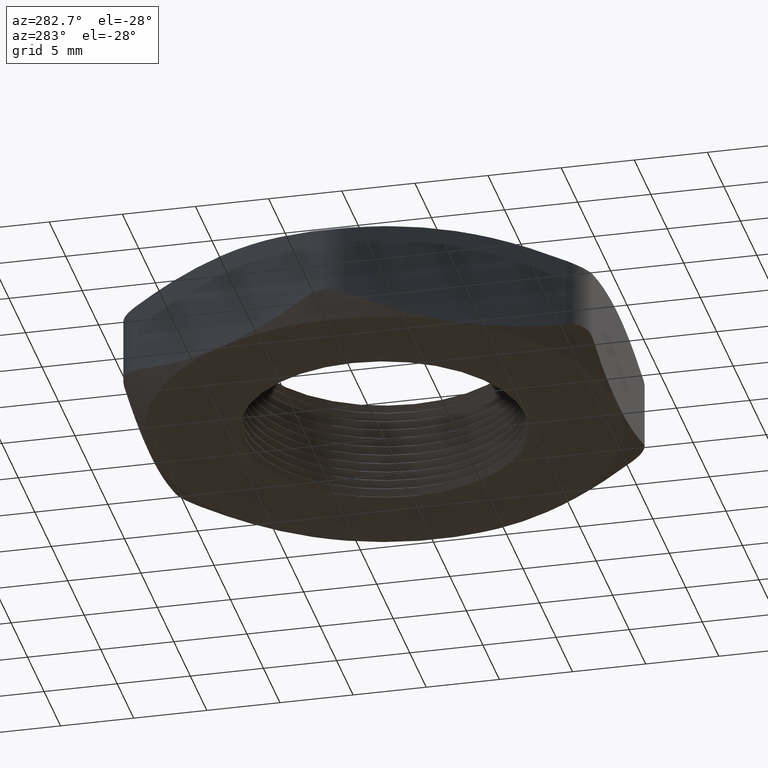
[diagram: clean part render]
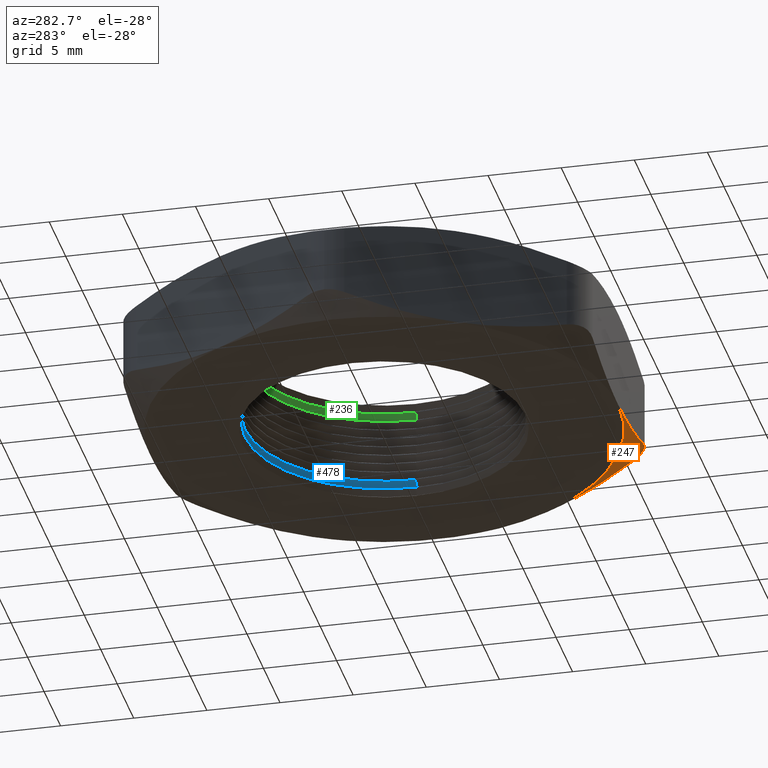
[diagram: same view with three faces highlighted in distinct colors, each labeled with its STEP entity id]
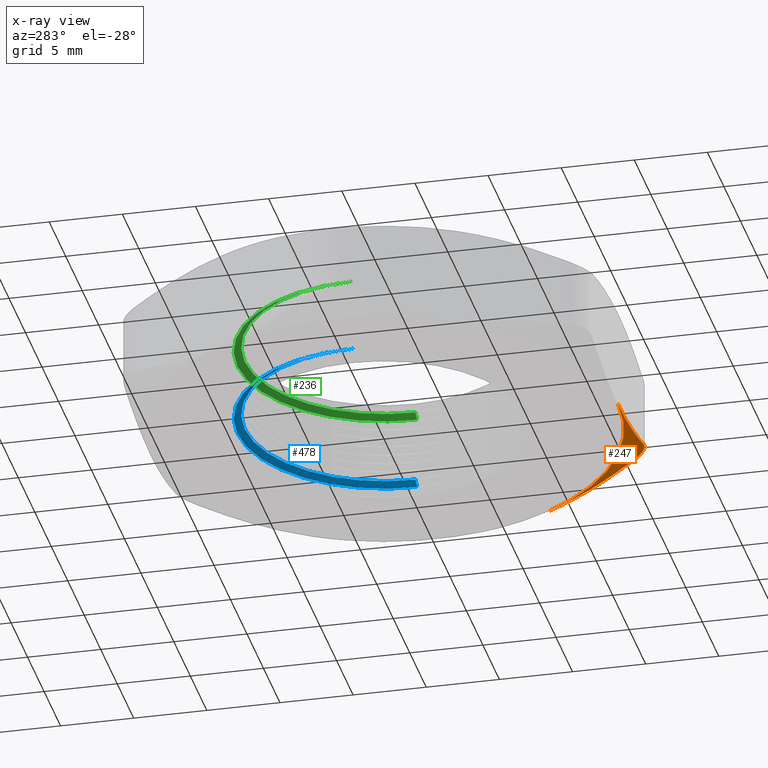
[diagram: x-ray of the same camera — body ghosted, the three highlighted faces saturated]
A machine part, auxiliary view with three faces highlighted in distinct colors.
The next image is the same camera in x-ray (body ghosted, the three faces saturated) — at least one of them is partly hidden behind the body in this view.
Their STEP definitions:

[orange] entity #247 — the highlighted conical surface has half-angle 60 deg.
#15 = VERTEX_POINT ( 'NONE', #886 ) ;
#22 = EDGE_CURVE ( 'NONE', #15, #1045, #911, .T. ) ;
#141 = EDGE_CURVE ( 'NONE', #1013, #142, #1237, .T. ) ;
#142 = VERTEX_POINT ( 'NONE', #1236 ) ;
#247 = ADVANCED_FACE ( 'NONE', ( #1369 ), #1365, .T. ) ;
#302 = ORIENTED_EDGE ( 'NONE', *, *, #141, .T. ) ;
#303 = ORIENTED_EDGE ( 'NONE', *, *, #22, .T. ) ;
#304 = ORIENTED_EDGE ( 'NONE', *, *, #1015, .F. ) ;
#306 = ORIENTED_EDGE ( 'NONE', *, *, #310, .T. ) ;
#310 = EDGE_CURVE ( 'NONE', #142, #15, #2187, .T. ) ;
#340 = EDGE_LOOP ( 'NONE', ( #302, #306, #303, #304 ) ) ;
#886 = CARTESIAN_POINT ( 'NONE',  ( 0.3059956426705017200, -0.6299999999999996700, 0.04063440198708866100 ) ) ;
#907 = CARTESIAN_POINT ( 'NONE',  ( 0.3059956426705017200, -0.6299999999999996700, 0.04063440198708866100 ) ) ;
#911 = B_SPLINE_CURVE_WITH_KNOTS ( 'NONE', 3,
 ( #907, #1085, #1084, #1083, #1082, #1081, #1080, #1079 ),
 .UNSPECIFIED., .F., .F.,
 ( 4, 2, 2, 4 ),
 ( 0.04672902150023194200, 0.05064689328706820100, 0.05260582918048633400, 0.05456476507390446700 ),
 .UNSPECIFIED. ) ;
#1013 = VERTEX_POINT ( 'NONE', #2105 ) ;
#1015 = EDGE_CURVE ( 'NONE', #1013, #1045, #2104, .T. ) ;
#1045 = VERTEX_POINT ( 'NONE', #2092 ) ;
#1079 = CARTESIAN_POINT ( 'NONE',  ( 1.182924880895401300E-016, -0.6300000000000001200, 0.0000000000000000000 ) ) ;
#1080 = CARTESIAN_POINT ( 'NONE',  ( 0.02579200222124228600, -0.6299999999999997800, -1.994195678968785800E-016 ) ) ;
#1081 = CARTESIAN_POINT ( 'NONE',  ( 0.05166957935136119000, -0.6299999999999996700, 0.0009179078308665548400 ) ) ;
#1082 = CARTESIAN_POINT ( 'NONE',  ( 0.1035954062706916500, -0.6299999999999997800, 0.004584420975691187200 ) ) ;
#1083 = CARTESIAN_POINT ( 'NONE',  ( 0.1293692025201566300, -0.6299999999999997800, 0.007313265423383262700 ) ) ;
#1084 = CARTESIAN_POINT ( 'NONE',  ( 0.2060195863822907600, -0.6299999999999996700, 0.01788070700900876500 ) ) ;
#1085 = CARTESIAN_POINT ( 'NONE',  ( 0.2563047715763589500, -0.6299999999999996700, 0.02810019209928715400 ) ) ;
#1096 = CARTESIAN_POINT ( 'NONE',  ( 0.3925981830489454500, -0.5799999999999997400, 0.04063440198708866100 ) ) ;
#1097 = CARTESIAN_POINT ( 'NONE',  ( 0.4176211247064825500, -0.5366589936943135800, 0.02801064249808456500 ) ) ;
#1098 = CARTESIAN_POINT ( 'NONE',  ( 0.4428433602086229200, -0.4929728003241393200, 0.01779319626366858100 ) ) ;
#1099 = CARTESIAN_POINT ( 'NONE',  ( 0.4810750435949703900, -0.4267535822400983500, 0.007276543638358973200 ) ) ;
#1100 = CARTESIAN_POINT ( 'NONE',  ( 0.4938853310808446500, -0.4045655134550000300, 0.004572635249509209500 ) ) ;
#1101 = CARTESIAN_POINT ( 'NONE',  ( 0.5196523308361767900, -0.3599357607201502700, 0.0009327802382047174800 ) ) ;
#1102 = CARTESIAN_POINT ( 'NONE',  ( 0.5326569008401135200, -0.3374111847427455600, -1.781270270771198400E-016 ) ) ;
#1103 = CARTESIAN_POINT ( 'NONE',  ( 0.5455960043841964200, -0.3150000000000000000, 0.0000000000000000000 ) ) ;
#1236 = CARTESIAN_POINT ( 'NONE',  ( 0.3925981830489454500, -0.5799999999999997400, 0.04063440198708866100 ) ) ;
#1237 = B_SPLINE_CURVE_WITH_KNOTS ( 'NONE', 3,
 ( #1103, #1102, #1101, #1100, #1099, #1098, #1097, #1096 ),
 .UNSPECIFIED., .F., .F.,
 ( 4, 2, 2, 4 ),
 ( 0.009348348844219096800, 0.01130023374885202700, 0.01325211865348495700, 0.01715588846275081800 ),
 .UNSPECIFIED. ) ;
#1360 = DIRECTION ( 'NONE',  ( -1.000000000000000000, 0.0000000000000000000, 0.0000000000000000000 ) ) ;
#1361 = DIRECTION ( 'NONE',  ( 0.0000000000000000000, 0.0000000000000000000, 1.000000000000000000 ) ) ;
#1362 = CARTESIAN_POINT ( 'NONE',  ( 0.0000000000000000000, 0.0000000000000000000, 0.0000000000000000000 ) ) ;
#1363 = AXIS2_PLACEMENT_3D ( 'NONE', #1362, #1361, #1360 ) ;
#1365 = CONICAL_SURFACE ( 'NONE', #1363, 0.6300000000000001200, 1.047197551196600100 ) ;
#1369 = FACE_OUTER_BOUND ( 'NONE', #340, .T. ) ;
#2092 = CARTESIAN_POINT ( 'NONE',  ( 1.182924880895401300E-016, -0.6300000000000001200, 0.0000000000000000000 ) ) ;
#2100 = DIRECTION ( 'NONE',  ( -1.000000000000000000, 0.0000000000000000000, 0.0000000000000000000 ) ) ;
#2101 = DIRECTION ( 'NONE',  ( -0.0000000000000000000, 0.0000000000000000000, -1.000000000000000000 ) ) ;
#2102 = CARTESIAN_POINT ( 'NONE',  ( 0.0000000000000000000, 0.0000000000000000000, 0.0000000000000000000 ) ) ;
#2103 = AXIS2_PLACEMENT_3D ( 'NONE', #2102, #2101, #2100 ) ;
#2104 = CIRCLE ( 'NONE', #2103, 0.6300000000000001200 ) ;
#2105 = CARTESIAN_POINT ( 'NONE',  ( 0.5455960043841964200, -0.3150000000000000000, 0.0000000000000000000 ) ) ;
#2162 = CARTESIAN_POINT ( 'NONE',  ( 0.3925981830489454500, -0.5799999999999997400, 0.04063440198708866100 ) ) ;
#2181 = CARTESIAN_POINT ( 'NONE',  ( 0.3636721594968538300, -0.6121620107411232000, 0.04733404162806195700 ) ) ;
#2182 = CARTESIAN_POINT ( 'NONE',  ( 0.3707106141912897600, -0.6067377047571307400, 0.04675043063081285600 ) ) ;
#2183 = CARTESIAN_POINT ( 'NONE',  ( 0.3830644947732887400, -0.5943202526883075700, 0.04446951372648417400 ) ) ;
#2184 = CARTESIAN_POINT ( 'NONE',  ( 0.3882874085536086000, -0.5874664804458952200, 0.04280913352685850000 ) ) ;
#2187 = B_SPLINE_CURVE_WITH_KNOTS ( 'NONE', 3,
 ( #2162, #2184, #2183, #2182, #2181, #2197, #2196, #2195, #2194, #2193 ),
 .UNSPECIFIED., .F., .F.,
 ( 4, 2, 2, 2, 4 ),
 ( 2.491306920542243800E-018, 0.0006684479132045115400, 0.001336895826409020500, 0.002005343739613529900, 0.002673791652818038800 ),
 .UNSPECIFIED. ) ;
#2193 = CARTESIAN_POINT ( 'NONE',  ( 0.3059956426705017200, -0.6299999999999996700, 0.04063440198708866100 ) ) ;
#2194 = CARTESIAN_POINT ( 'NONE',  ( 0.3146195873315776300, -0.6300000000000001200, 0.04280973781965895900 ) ) ;
#2195 = CARTESIAN_POINT ( 'NONE',  ( 0.3233521482827375100, -0.6288661155341268600, 0.04450017217886037500 ) ) ;
#2196 = CARTESIAN_POINT ( 'NONE',  ( 0.3401720759722338100, -0.6243807633718182500, 0.04675539854059019400 ) ) ;
#2197 = CARTESIAN_POINT ( 'NONE',  ( 0.3484633796037652200, -0.6209597049358234200, 0.04734130525848826600 ) ) ;

[blue] entity #478 — the highlighted conical surface has half-angle 60 deg.
#366 = VERTEX_POINT ( 'NONE', #2258 ) ;
#369 = VERTEX_POINT ( 'NONE', #2252 ) ;
#389 = VERTEX_POINT ( 'NONE', #2315 ) ;
#391 = EDGE_CURVE ( 'NONE', #389, #369, #2314, .T. ) ;
#394 = EDGE_CURVE ( 'NONE', #570, #366, #2310, .T. ) ;
#425 = EDGE_CURVE ( 'NONE', #389, #570, #2401, .T. ) ;
#473 = EDGE_LOOP ( 'NONE', ( #559, #560, #561, #562 ) ) ;
#478 = ADVANCED_FACE ( 'NONE', ( #2599 ), #2596, .F. ) ;
#559 = ORIENTED_EDGE ( 'NONE', *, *, #391, .F. ) ;
#560 = ORIENTED_EDGE ( 'NONE', *, *, #425, .T. ) ;
#561 = ORIENTED_EDGE ( 'NONE', *, *, #394, .T. ) ;
#562 = ORIENTED_EDGE ( 'NONE', *, *, #563, .F. ) ;
#563 = EDGE_CURVE ( 'NONE', #369, #366, #2487, .T. ) ;
#570 = VERTEX_POINT ( 'NONE', #2503 ) ;
#2252 = CARTESIAN_POINT ( 'NONE',  ( 0.3950000000000000200, 4.837195097598389900E-017, 0.03345299461620775100 ) ) ;
#2258 = CARTESIAN_POINT ( 'NONE',  ( -0.3950000000000000200, 0.0000000000000000000, 0.03345299461620775100 ) ) ;
#2307 = DIRECTION ( 'NONE',  ( -0.8660254037844434800, 0.0000000000000000000, -0.4999999999999913400 ) ) ;
#2308 = VECTOR ( 'NONE', #2307, 39.37007874015748900 ) ;
#2309 = CARTESIAN_POINT ( 'NONE',  ( -0.3950000000000000200, 0.0000000000000000000, 0.03345299461620775100 ) ) ;
#2310 = LINE ( 'NONE', #2309, #2308 ) ;
#2311 = DIRECTION ( 'NONE',  ( 0.8660254037844434800, 1.060540212046019300E-016, -0.4999999999999913400 ) ) ;
#2312 = VECTOR ( 'NONE', #2311, 39.37007874015748900 ) ;
#2313 = CARTESIAN_POINT ( 'NONE',  ( 0.3950000000000000200, 4.837195097598389900E-017, 0.03345299461620775100 ) ) ;
#2314 = LINE ( 'NONE', #2313, #2312 ) ;
#2315 = CARTESIAN_POINT ( 'NONE',  ( 0.3750000000000000600, 4.592273826833915300E-017, 0.04499999999999999800 ) ) ;
#2394 = DIRECTION ( 'NONE',  ( 1.000000000000000000, 0.0000000000000000000, 0.0000000000000000000 ) ) ;
#2395 = DIRECTION ( 'NONE',  ( -0.0000000000000000000, -0.0000000000000000000, 1.000000000000000000 ) ) ;
#2396 = CARTESIAN_POINT ( 'NONE',  ( 0.0000000000000000000, 0.0000000000000000000, 0.04499999999999999800 ) ) ;
#2397 = AXIS2_PLACEMENT_3D ( 'NONE', #2396, #2395, #2394 ) ;
#2401 = CIRCLE ( 'NONE', #2397, 0.3750000000000000600 ) ;
#2483 = DIRECTION ( 'NONE',  ( 1.000000000000000000, 0.0000000000000000000, 0.0000000000000000000 ) ) ;
#2484 = DIRECTION ( 'NONE',  ( -0.0000000000000000000, -0.0000000000000000000, 1.000000000000000000 ) ) ;
#2485 = CARTESIAN_POINT ( 'NONE',  ( 0.0000000000000000000, 0.0000000000000000000, 0.03345299461620775100 ) ) ;
#2486 = AXIS2_PLACEMENT_3D ( 'NONE', #2485, #2484, #2483 ) ;
#2487 = CIRCLE ( 'NONE', #2486, 0.3950000000000000200 ) ;
#2503 = CARTESIAN_POINT ( 'NONE',  ( -0.3750000000000000600, 0.0000000000000000000, 0.04499999999999999800 ) ) ;
#2593 = DIRECTION ( 'NONE',  ( -1.000000000000000000, 0.0000000000000000000, 0.0000000000000000000 ) ) ;
#2594 = DIRECTION ( 'NONE',  ( 0.0000000000000000000, 0.0000000000000000000, -1.000000000000000000 ) ) ;
#2595 = AXIS2_PLACEMENT_3D ( 'NONE', #2598, #2594, #2593 ) ;
#2596 = CONICAL_SURFACE ( 'NONE', #2595, 0.3950000000000000200, 1.047197551196607600 ) ;
#2598 = CARTESIAN_POINT ( 'NONE',  ( 0.0000000000000000000, 0.0000000000000000000, 0.03345299461620775100 ) ) ;
#2599 = FACE_OUTER_BOUND ( 'NONE', #473, .T. ) ;

[green] entity #236 — the highlighted conical surface has half-angle 60 deg.
#37 = EDGE_CURVE ( 'NONE', #677, #676, #966, .T. ) ;
#236 = ADVANCED_FACE ( 'NONE', ( #1391 ), #1390, .F. ) ;
#237 = ORIENTED_EDGE ( 'NONE', *, *, #719, .F. ) ;
#238 = ORIENTED_EDGE ( 'NONE', *, *, #37, .T. ) ;
#290 = EDGE_LOOP ( 'NONE', ( #237, #238, #291, #292 ) ) ;
#291 = ORIENTED_EDGE ( 'NONE', *, *, #726, .T. ) ;
#292 = ORIENTED_EDGE ( 'NONE', *, *, #293, .F. ) ;
#293 = EDGE_CURVE ( 'NONE', #722, #857, #2141, .T. ) ;
#676 = VERTEX_POINT ( 'NONE', #1467 ) ;
#677 = VERTEX_POINT ( 'NONE', #1466 ) ;
#719 = EDGE_CURVE ( 'NONE', #677, #722, #1573, .T. ) ;
#722 = VERTEX_POINT ( 'NONE', #1564 ) ;
#726 = EDGE_CURVE ( 'NONE', #676, #857, #1557, .T. ) ;
#857 = VERTEX_POINT ( 'NONE', #2047 ) ;
#962 = DIRECTION ( 'NONE',  ( 1.000000000000000000, 0.0000000000000000000, 0.0000000000000000000 ) ) ;
#963 = DIRECTION ( 'NONE',  ( -0.0000000000000000000, -0.0000000000000000000, 1.000000000000000000 ) ) ;
#964 = CARTESIAN_POINT ( 'NONE',  ( 0.0000000000000000000, 0.0000000000000000000, 0.2450000000000000200 ) ) ;
#965 = AXIS2_PLACEMENT_3D ( 'NONE', #964, #963, #962 ) ;
#966 = CIRCLE ( 'NONE', #965, 0.3750000000000000600 ) ;
#1390 = CONICAL_SURFACE ( 'NONE', #1394, 0.3950000000000000200, 1.047197551196607600 ) ;
#1391 = FACE_OUTER_BOUND ( 'NONE', #290, .T. ) ;
#1393 = CARTESIAN_POINT ( 'NONE',  ( 0.0000000000000000000, 0.0000000000000000000, 0.2334529946162077800 ) ) ;
#1394 = AXIS2_PLACEMENT_3D ( 'NONE', #1393, #1455, #1454 ) ;
#1454 = DIRECTION ( 'NONE',  ( -1.000000000000000000, 0.0000000000000000000, 0.0000000000000000000 ) ) ;
#1455 = DIRECTION ( 'NONE',  ( 0.0000000000000000000, 0.0000000000000000000, -1.000000000000000000 ) ) ;
#1466 = CARTESIAN_POINT ( 'NONE',  ( 0.3750000000000000600, 4.592273826833915300E-017, 0.2450000000000000200 ) ) ;
#1467 = CARTESIAN_POINT ( 'NONE',  ( -0.3750000000000000600, 0.0000000000000000000, 0.2450000000000000200 ) ) ;
#1555 = VECTOR ( 'NONE', #1870, 39.37007874015748900 ) ;
#1556 = CARTESIAN_POINT ( 'NONE',  ( -0.3950000000000000200, 0.0000000000000000000, 0.2334529946162077800 ) ) ;
#1557 = LINE ( 'NONE', #1556, #1555 ) ;
#1564 = CARTESIAN_POINT ( 'NONE',  ( 0.3950000000000000200, 4.837195097598389900E-017, 0.2334529946162077800 ) ) ;
#1570 = DIRECTION ( 'NONE',  ( 0.8660254037844434800, 1.060540212046019300E-016, -0.4999999999999913400 ) ) ;
#1571 = VECTOR ( 'NONE', #1570, 39.37007874015748900 ) ;
#1572 = CARTESIAN_POINT ( 'NONE',  ( 0.3950000000000000200, 4.837195097598389900E-017, 0.2334529946162077800 ) ) ;
#1573 = LINE ( 'NONE', #1572, #1571 ) ;
#1870 = DIRECTION ( 'NONE',  ( -0.8660254037844434800, 0.0000000000000000000, -0.4999999999999913400 ) ) ;
#2047 = CARTESIAN_POINT ( 'NONE',  ( -0.3950000000000000200, 0.0000000000000000000, 0.2334529946162077800 ) ) ;
#2140 = CARTESIAN_POINT ( 'NONE',  ( 0.0000000000000000000, 0.0000000000000000000, 0.2334529946162077800 ) ) ;
#2141 = CIRCLE ( 'NONE', #2144, 0.3950000000000000200 ) ;
#2144 = AXIS2_PLACEMENT_3D ( 'NONE', #2140, #2148, #2146 ) ;
#2146 = DIRECTION ( 'NONE',  ( 1.000000000000000000, 0.0000000000000000000, 0.0000000000000000000 ) ) ;
#2148 = DIRECTION ( 'NONE',  ( -0.0000000000000000000, -0.0000000000000000000, 1.000000000000000000 ) ) ;